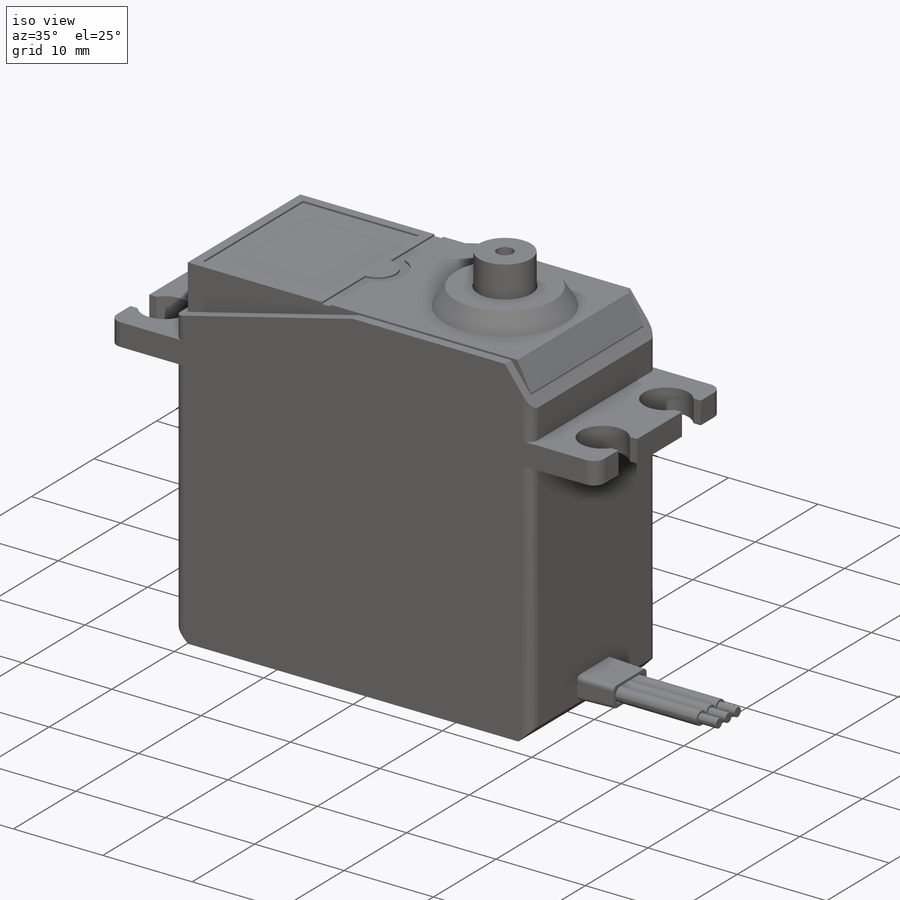
[diagram: iso view]
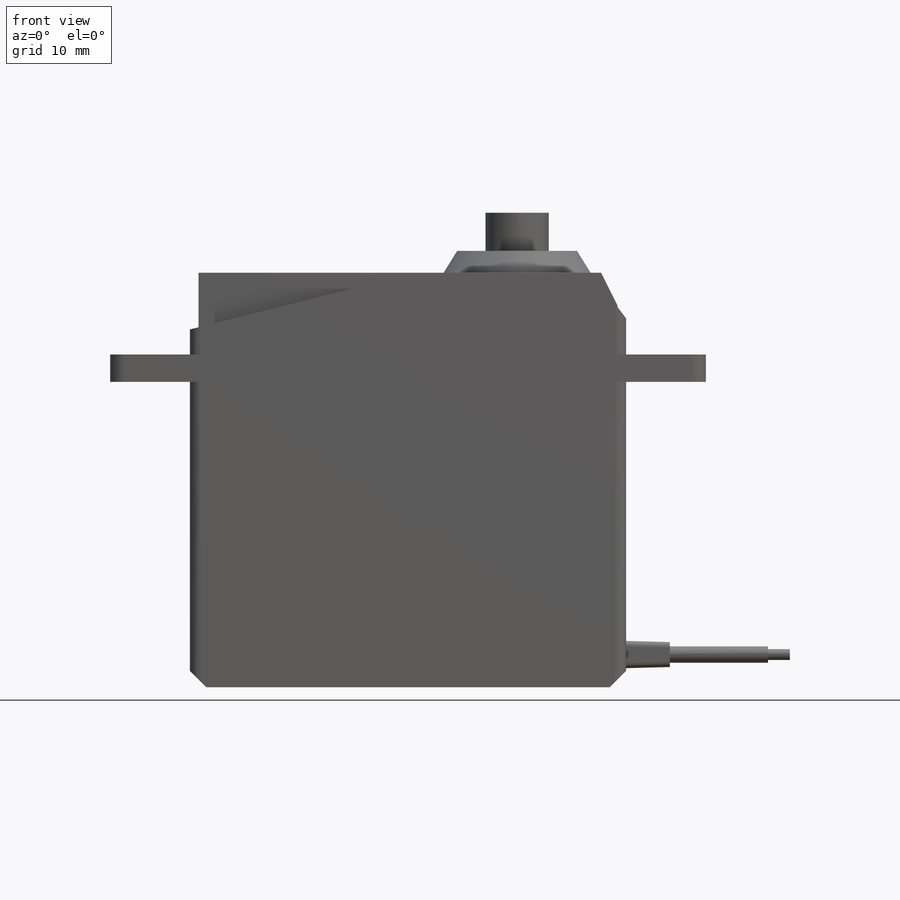
[diagram: front view]
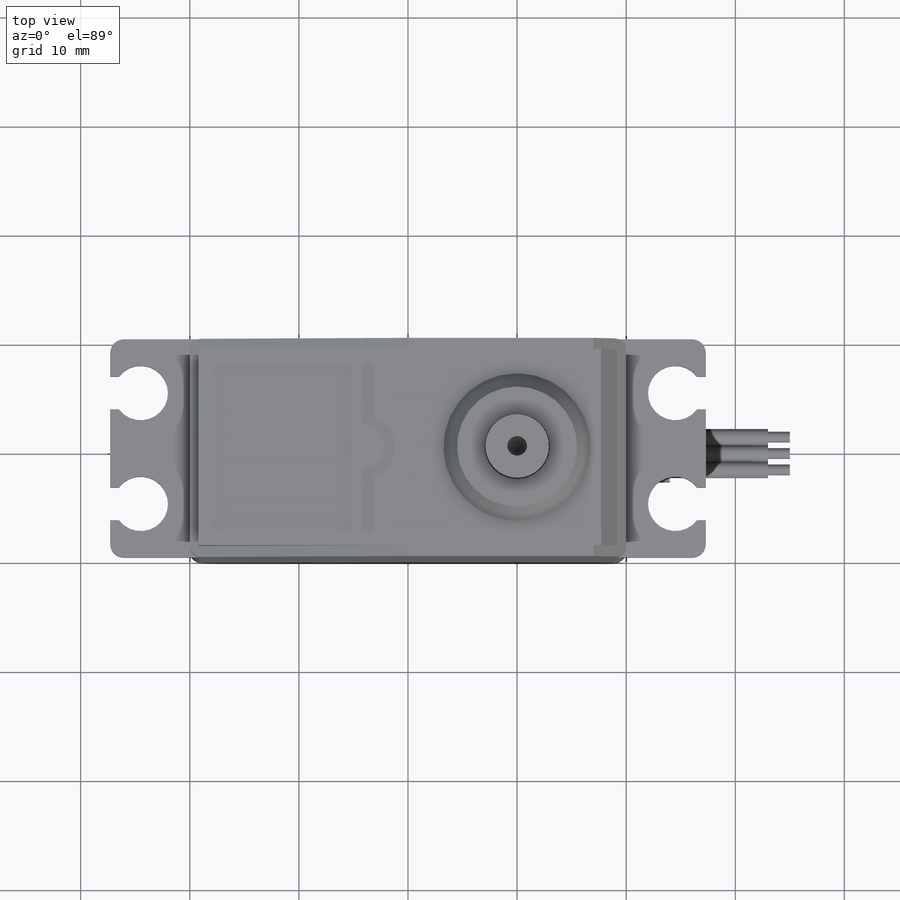
[diagram: top view]
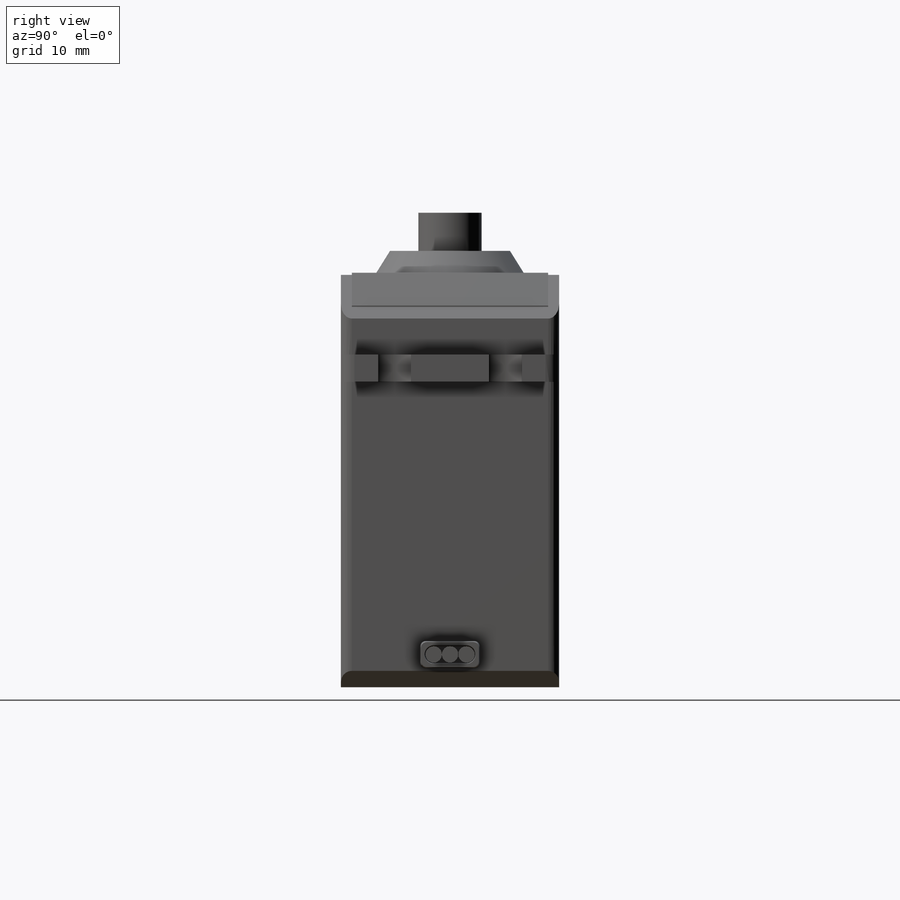
[diagram: right view]
SOLIDWORKS PART (.sldprt)
format: sldprt  version: not decoded by parser v0  size: 643,584 bytes
history: native  units: mm
features: sketch x11, extrude x8, chamfer x4, fillet x3, revolve x2, material x1, cut_extrude x1, boolean_combine x1 (+13 scaffold rows collapsed)
feature tree (44):
  scaffold x13  (default folders/planes/origin — collapsed)
  material  "Material <not specified>"
  sketch  "Sketch1"  dims[c1.D1=40.0mm c1.D2=20.0mm c2.D1=19.4mm c2.D2=19.4mm c2.D3=9.9mm c2.D4=9.9mm]
  extrude  "Extrude1"  Depth=28mm
  sketch  "Sketch2"  dims[c1.D5=~1.443641mm c1.D1=1.0mm c1.D2=2.5mm c1.D4=1.25mm c2.D5=2.0mm c2.D1=55.0mm c2.D2=7.25mm c3.D1=6.0mm c3.D3=10.16mm c4.D1=54.6mm c4.D5=3.0mm c4.D6=3.0mm c5.D5=49.0mm c5.D1=26.5mm c5.D2=26.5mm c5.D3=9.9mm c5.D4=9.9mm c6.D5=5.0mm c6.D6=5.0mm c6.D7=24.0mm c6.D8=24.0mm c7.D5=1.25mm c7.D6=1.25mm c7.D2=9.5mm c7.D3=9.5mm]
  chamfer  "Chamfer1"  Distance=1.5mm Angle=45deg
  extrude  "Extrude5"  Depth=2.5mm
  sketch  "Sketch3"  dims[D1=0.0mm]
  extrude  "Extrude6"  Depth=37.8mm
  chamfer  "Chamfer2"  Distance=3mm
  chamfer  "Chamfer3"  Distance=20mm
  fillet  "Fillet1"  Radius=1mm
  sketch  "Sketch5"  dims[c1.D2=0.5mm c1.D4=~4.686634mm c1.D1=18.0mm c2.D2=0.8mm c2.D3=0.8mm c2.D1=32.0mm c3.D2=8.5mm c3.D3=8.5mm c4.D2=12.0mm c4.D3=8.5mm c4.D1=1.0mm c5.D2=0.5mm]
  extrude  "Extrude8"  Depth=0.2mm
  sketch  "Sketch6"  dims[D2=0.5mm D1=0.5mm]
  extrude  "Extrude9"  Depth=1mm
  chamfer  "Chamfer4"  Distance=3mm
  sketch  "Sketch27"  dims[c1.D5=2.0mm c1.D7=~4.683155mm c1.D1=1.0mm c1.D2=1.0mm c1.D3=13.0mm c1.D4=1.0mm c1.D6=1.0mm c2.D7=1.0mm]
  cut_extrude  "Cut-Extrude2"  Depth=0.2mm
  sketch  "Sketch28"  dims[D1=13.5mm D2=10.0mm D3=11.0mm D4=2.0mm D5=6.0mm D6=5.8mm D7=5.5mm D8=1.8mm D9=4.0mm D10=1.0mm]
  revolve  "Revolve1"  Angle=360deg
  boolean_combine  "Combine1"
  sketch  "Sketch22"  dims[c1.D1=1.5mm c1.D2=1.25mm c1.D3=1.5mm c1.D4=1.0mm c2.D1=0.5mm]
  extrude  "Extrude25"  Depth=13mm
  sketch  "Sketch24"
  extrude  "Extrude26"  Depth=15mm
  sketch  "Sketch25"  dims[c1.D1=1.5mm c1.D2=1.5mm c2.D1=0.5mm c2.D2=0.5mm c2.D3=0.0mm]
  extrude  "Extrude27"  Depth=4mm
  fillet  "Fillet9"  Radius=0.5mm
  sketch  "Sketch29"  dims[c1.D5=2.0mm c1.D1=35.0mm c1.D2=3.5mm c1.D3=8.2mm c1.D4=2.0mm c1.D6=3.0mm c1.D7=~15.326499mm c1.D8=1.5mm c2.D4=0.25mm c2.D9=1.5mm c3.D9=~0.364398deg c4.D9=2.0mm c4.D10=0.5mm c4.D7=5.5mm]
  revolve  "Revolve2"  Angle=360deg
  fillet  "Fillet10"  Radius=0.25mm
decode coverage: 28 of 30 modeling features carry decoded parameters
note: ~ marks probable driven/reference dimensions
note: suppression state not decoded; provenance and decode notes live in map.json
